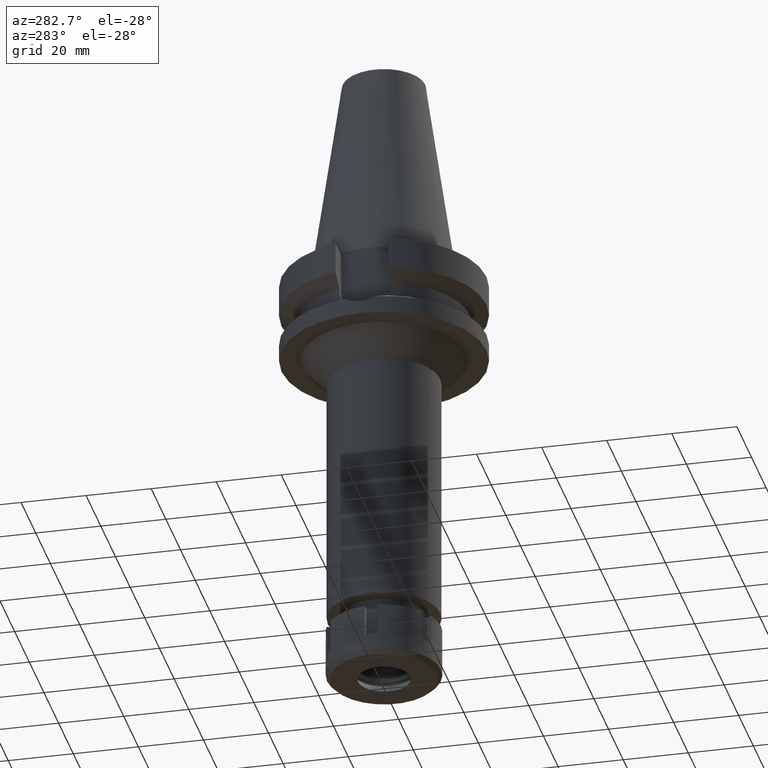
[diagram: clean part render]
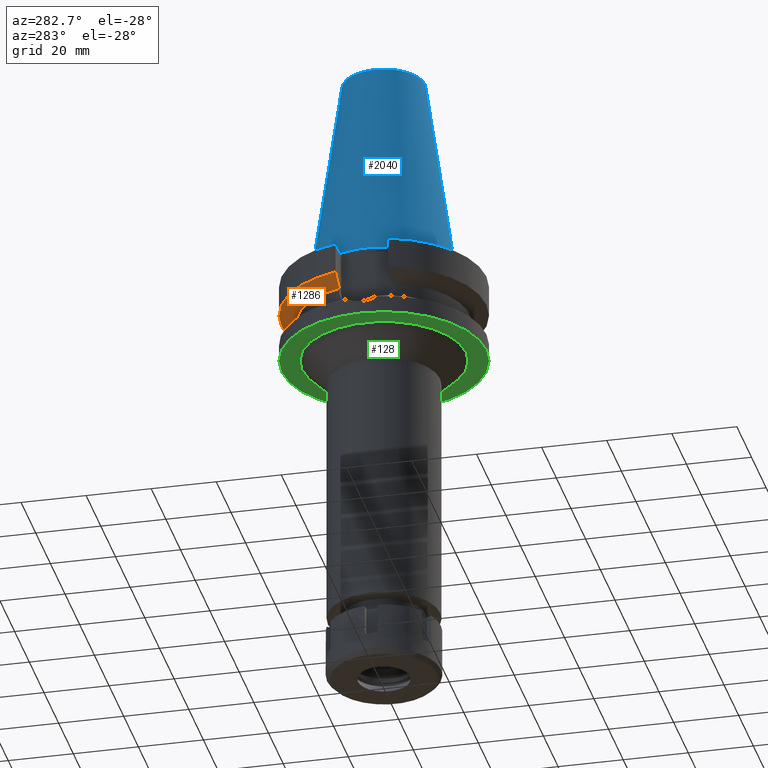
[diagram: same view with three faces highlighted in distinct colors, each labeled with its STEP entity id]
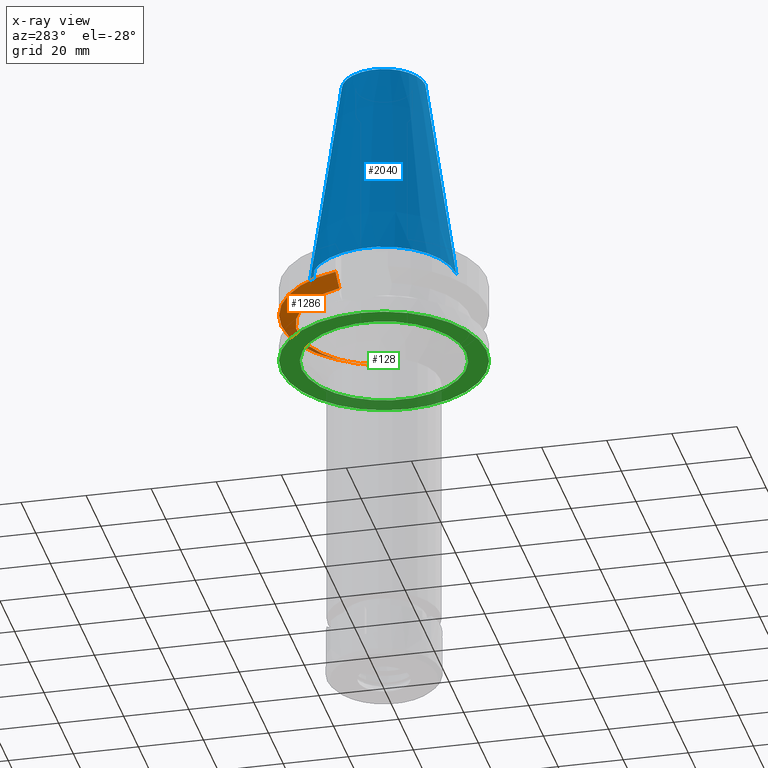
[diagram: x-ray of the same camera — body ghosted, the three highlighted faces saturated]
A machine part, auxiliary view with three faces highlighted in distinct colors.
The next image is the same camera in x-ray (body ghosted, the three faces saturated) — at least one of them is partly hidden behind the body in this view.
Their STEP definitions:

[orange] entity #1286 — the highlighted conical surface has half-angle 60 deg.
#19 = DIRECTION ( 'NONE',  ( 0.0000000000000000000, 0.0000000000000000000, 1.000000000000000000 ) ) ;
#69 = VERTEX_POINT ( 'NONE', #619 ) ;
#82 = EDGE_CURVE ( 'NONE', #2698, #1268, #2562, .T. ) ;
#165 = CONICAL_SURFACE ( 'NONE', #648, 29.00000000000000000, 1.047197551196400456 ) ;
#195 = DIRECTION ( 'NONE',  ( 0.0000000000000000000, 0.0000000000000000000, 1.000000000000000000 ) ) ;
#367 = B_SPLINE_CURVE_WITH_KNOTS ( 'NONE', 3,
 ( #3197, #419, #2354, #1613 ),
 .UNSPECIFIED., .F., .F.,
 ( 4, 4 ),
 ( 0.0000000000000000000, 1.000000000000000000 ),
 .UNSPECIFIED. ) ;
#382 = VERTEX_POINT ( 'NONE', #1389 ) ;
#419 = CARTESIAN_POINT ( 'NONE',  ( -26.83758148156504220, 8.050003176076605982, -13.57772735320767232 ) ) ;
#483 = CARTESIAN_POINT ( 'NONE',  ( -30.45402162749999775, 8.050004143599000628, -11.56546832888999887 ) ) ;
#537 = FACE_OUTER_BOUND ( 'NONE', #3299, .T. ) ;
#619 = CARTESIAN_POINT ( 'NONE',  ( 25.24772413108999913, 8.049995416158999717, -14.45229202514000022 ) ) ;
#648 = AXIS2_PLACEMENT_3D ( 'NONE', #1879, #195, #1647 ) ;
#751 = CARTESIAN_POINT ( 'NONE',  ( 25.24772413108999913, 8.049995416158999717, -14.45229202514000022 ) ) ;
#753 = ORIENTED_EDGE ( 'NONE', *, *, #2375, .T. ) ;
#841 = ORIENTED_EDGE ( 'NONE', *, *, #82, .F. ) ;
#1073 = ORIENTED_EDGE ( 'NONE', *, *, #1351, .F. ) ;
#1268 = VERTEX_POINT ( 'NONE', #483 ) ;
#1286 = ADVANCED_FACE ( 'NONE', ( #537 ), #165, .T. ) ;
#1344 = DIRECTION ( 'NONE',  ( 0.0000000000000000000, 0.0000000000000000000, -1.000000000000000000 ) ) ;
#1351 = EDGE_CURVE ( 'NONE', #382, #69, #1696, .T. ) ;
#1389 = CARTESIAN_POINT ( 'NONE',  ( -25.24772216380000245, 8.050001586324000868, -14.45224487770000010 ) ) ;
#1613 = CARTESIAN_POINT ( 'NONE',  ( -30.45402162749999775, 8.050004143599000628, -11.56546832888999887 ) ) ;
#1647 = DIRECTION ( 'NONE',  ( 0.0000000000000000000, 1.000000000000000000, 0.0000000000000000000 ) ) ;
#1696 = CIRCLE ( 'NONE', #2623, 26.50000000000000711 ) ;
#1879 = CARTESIAN_POINT ( 'NONE',  ( 0.0000000000000000000, 1.065333950388000029E-14, -13.00888132564000088 ) ) ;
#2130 = CARTESIAN_POINT ( 'NONE',  ( 30.45402291367999936, 8.049999277834000821, -11.56551215707000146 ) ) ;
#2354 = CARTESIAN_POINT ( 'NONE',  ( -28.57295871229119655, 8.050008282161501327, -12.61547480431971913 ) ) ;
#2357 = CARTESIAN_POINT ( 'NONE',  ( 28.57292329698156053, 8.049998556609327949, -12.61549605170334765 ) ) ;
#2375 = EDGE_CURVE ( 'NONE', #2698, #69, #2852, .T. ) ;
#2562 = CIRCLE ( 'NONE', #3331, 31.50000000000000000 ) ;
#2623 = AXIS2_PLACEMENT_3D ( 'NONE', #2737, #1344, #3576 ) ;
#2698 = VERTEX_POINT ( 'NONE', #2957 ) ;
#2737 = CARTESIAN_POINT ( 'NONE',  ( 0.0000000000000000000, 1.065333950388000029E-14, -14.45225699861000024 ) ) ;
#2852 = B_SPLINE_CURVE_WITH_KNOTS ( 'NONE', 3,
 ( #2130, #2357, #3490, #751 ),
 .UNSPECIFIED., .F., .F.,
 ( 4, 4 ),
 ( 0.0000000000000000000, 1.000000000000000000 ),
 .UNSPECIFIED. ) ;
#2866 = EDGE_CURVE ( 'NONE', #382, #1268, #367, .T. ) ;
#2957 = CARTESIAN_POINT ( 'NONE',  ( 30.45402291367999936, 8.049999277834000821, -11.56551215707000146 ) ) ;
#3146 = DIRECTION ( 'NONE',  ( 0.0000000000000000000, 1.000000000000000000, 0.0000000000000000000 ) ) ;
#3197 = CARTESIAN_POINT ( 'NONE',  ( -25.24772216380000245, 8.050001586324000868, -14.45224487770000010 ) ) ;
#3299 = EDGE_LOOP ( 'NONE', ( #841, #753, #1073, #3608 ) ) ;
#3331 = AXIS2_PLACEMENT_3D ( 'NONE', #3384, #19, #3146 ) ;
#3384 = CARTESIAN_POINT ( 'NONE',  ( 0.0000000000000000000, 1.065333950388000029E-14, -11.56550565266999975 ) ) ;
#3490 = CARTESIAN_POINT ( 'NONE',  ( 26.83754616686475813, 8.049990822164067694, -13.57774887719724433 ) ) ;
#3576 = DIRECTION ( 'NONE',  ( -0.9527442516822307583, 0.3037735849057093818, 0.0000000000000000000 ) ) ;
#3608 = ORIENTED_EDGE ( 'NONE', *, *, #2866, .T. ) ;

[blue] entity #2040 — the highlighted conical surface has half-angle 8.297 deg.
#141 = ORIENTED_EDGE ( 'NONE', *, *, #1158, .T. ) ;
#239 = DIRECTION ( 'NONE',  ( 0.0000000000000000000, 0.0000000000000000000, -1.000000000000000000 ) ) ;
#337 = EDGE_CURVE ( 'NONE', #1956, #1394, #2066, .T. ) ;
#468 = AXIS2_PLACEMENT_3D ( 'NONE', #818, #239, #3244 ) ;
#508 = DIRECTION ( 'NONE',  ( 0.0000000000000000000, -1.000000000000000000, 0.0000000000000000000 ) ) ;
#680 = LINE ( 'NONE', #2348, #3516 ) ;
#813 = CARTESIAN_POINT ( 'NONE',  ( 0.0000000000000000000, 1.625106302469000024E-14, 32.70000000000000284 ) ) ;
#818 = CARTESIAN_POINT ( 'NONE',  ( 0.0000000000000000000, 1.625106302469000024E-14, 65.40000000000000568 ) ) ;
#1019 = ORIENTED_EDGE ( 'NONE', *, *, #1622, .T. ) ;
#1093 = CARTESIAN_POINT ( 'NONE',  ( 0.0000000000000000000, 1.625106302469000024E-14, 2.842170943039999687E-14 ) ) ;
#1158 = EDGE_CURVE ( 'NONE', #1956, #2119, #1519, .T. ) ;
#1175 = EDGE_CURVE ( 'NONE', #1394, #2894, #2506, .T. ) ;
#1313 = DIRECTION ( 'NONE',  ( 0.0000000000000000000, 0.0000000000000000000, -1.000000000000000000 ) ) ;
#1380 = DIRECTION ( 'NONE',  ( 0.0000000000000000000, 0.0000000000000000000, -1.000000000000000000 ) ) ;
#1388 = EDGE_LOOP ( 'NONE', ( #1963, #3097, #141, #1019 ) ) ;
#1394 = VERTEX_POINT ( 'NONE', #3637 ) ;
#1396 = CARTESIAN_POINT ( 'NONE',  ( 0.0000000000000000000, -12.68766899429999917, 65.40000000000000568 ) ) ;
#1422 = CONICAL_SURFACE ( 'NONE', #2058, 17.45633449714999941, 0.1448099680379422438 ) ;
#1519 = CIRCLE ( 'NONE', #468, 12.68766899429999917 ) ;
#1622 = EDGE_CURVE ( 'NONE', #2119, #2894, #680, .T. ) ;
#1956 = VERTEX_POINT ( 'NONE', #1396 ) ;
#1963 = ORIENTED_EDGE ( 'NONE', *, *, #1175, .F. ) ;
#2040 = ADVANCED_FACE ( 'NONE', ( #2432 ), #1422, .T. ) ;
#2058 = AXIS2_PLACEMENT_3D ( 'NONE', #813, #1380, #508 ) ;
#2066 = LINE ( 'NONE', #3072, #2379 ) ;
#2105 = DIRECTION ( 'NONE',  ( 0.0000000000000000000, 0.1443043893539925626, -0.9895333461855498891 ) ) ;
#2119 = VERTEX_POINT ( 'NONE', #3148 ) ;
#2125 = DIRECTION ( 'NONE',  ( 0.0000000000000000000, -1.000000000000000000, 0.0000000000000000000 ) ) ;
#2348 = CARTESIAN_POINT ( 'NONE',  ( 0.0000000000000000000, 12.68766899429999917, 65.40000000000000568 ) ) ;
#2379 = VECTOR ( 'NONE', #3547, 1000.000000000000114 ) ;
#2432 = FACE_OUTER_BOUND ( 'NONE', #1388, .T. ) ;
#2465 = CARTESIAN_POINT ( 'NONE',  ( 0.0000000000000000000, 22.22500000000000142, 9.947598300640998705E-14 ) ) ;
#2506 = CIRCLE ( 'NONE', #2867, 22.22500000000000142 ) ;
#2867 = AXIS2_PLACEMENT_3D ( 'NONE', #1093, #1313, #2125 ) ;
#2894 = VERTEX_POINT ( 'NONE', #2465 ) ;
#3072 = CARTESIAN_POINT ( 'NONE',  ( 0.0000000000000000000, -12.68766899429999917, 65.40000000000000568 ) ) ;
#3097 = ORIENTED_EDGE ( 'NONE', *, *, #337, .F. ) ;
#3148 = CARTESIAN_POINT ( 'NONE',  ( 0.0000000000000000000, 12.68766899429999917, 65.40000000000000568 ) ) ;
#3244 = DIRECTION ( 'NONE',  ( 0.0000000000000000000, -1.000000000000000000, 0.0000000000000000000 ) ) ;
#3516 = VECTOR ( 'NONE', #2105, 1000.000000000000114 ) ;
#3547 = DIRECTION ( 'NONE',  ( 0.0000000000000000000, -0.1443043893539925626, -0.9895333461855498891 ) ) ;
#3637 = CARTESIAN_POINT ( 'NONE',  ( 0.0000000000000000000, -22.22500000000000142, 2.842170943039999687E-14 ) ) ;

[green] entity #128 — the highlighted planar face has unit normal (0, 0, -1).
#89 = DIRECTION ( 'NONE',  ( 0.0000000000000000000, -1.000000000000000000, 0.0000000000000000000 ) ) ;
#125 = CARTESIAN_POINT ( 'NONE',  ( 0.0000000000000000000, -31.50000000000000000, -27.00000000000000000 ) ) ;
#128 = ADVANCED_FACE ( 'NONE', ( #2568, #585 ), #2889, .T. ) ;
#166 = CARTESIAN_POINT ( 'NONE',  ( 0.0000000000000000000, 31.50000000000000000, -27.00000000000000000 ) ) ;
#227 = ORIENTED_EDGE ( 'NONE', *, *, #3340, .F. ) ;
#273 = VERTEX_POINT ( 'NONE', #166 ) ;
#379 = ORIENTED_EDGE ( 'NONE', *, *, #705, .F. ) ;
#487 = DIRECTION ( 'NONE',  ( 0.0000000000000000000, 0.0000000000000000000, 1.000000000000000000 ) ) ;
#521 = DIRECTION ( 'NONE',  ( 0.0000000000000000000, -1.000000000000000000, 0.0000000000000000000 ) ) ;
#585 = FACE_BOUND ( 'NONE', #1220, .T. ) ;
#637 = DIRECTION ( 'NONE',  ( 0.0000000000000000000, -1.000000000000000000, 0.0000000000000000000 ) ) ;
#705 = EDGE_CURVE ( 'NONE', #1415, #1198, #2326, .T. ) ;
#888 = CARTESIAN_POINT ( 'NONE',  ( 0.0000000000000000000, 0.0000000000000000000, -27.00000000000000000 ) ) ;
#1198 = VERTEX_POINT ( 'NONE', #1363 ) ;
#1220 = EDGE_LOOP ( 'NONE', ( #1516, #379 ) ) ;
#1226 = CIRCLE ( 'NONE', #1790, 31.50000000000000000 ) ;
#1311 = DIRECTION ( 'NONE',  ( 0.0000000000000000000, 1.000000000000000000, 0.0000000000000000000 ) ) ;
#1363 = CARTESIAN_POINT ( 'NONE',  ( 0.0000000000000000000, 25.25000000000000000, -27.00000000000000000 ) ) ;
#1415 = VERTEX_POINT ( 'NONE', #1665 ) ;
#1516 = ORIENTED_EDGE ( 'NONE', *, *, #2269, .F. ) ;
#1526 = DIRECTION ( 'NONE',  ( 0.0000000000000000000, 0.0000000000000000000, -1.000000000000000000 ) ) ;
#1570 = AXIS2_PLACEMENT_3D ( 'NONE', #888, #1994, #637 ) ;
#1665 = CARTESIAN_POINT ( 'NONE',  ( 0.0000000000000000000, -25.25000000000000000, -27.00000000000000000 ) ) ;
#1679 = ORIENTED_EDGE ( 'NONE', *, *, #2998, .F. ) ;
#1685 = AXIS2_PLACEMENT_3D ( 'NONE', #2991, #487, #521 ) ;
#1790 = AXIS2_PLACEMENT_3D ( 'NONE', #3554, #1877, #1311 ) ;
#1845 = CARTESIAN_POINT ( 'NONE',  ( 0.0000000000000000000, 0.0000000000000000000, -27.00000000000000000 ) ) ;
#1877 = DIRECTION ( 'NONE',  ( 0.0000000000000000000, 0.0000000000000000000, 1.000000000000000000 ) ) ;
#1994 = DIRECTION ( 'NONE',  ( 0.0000000000000000000, 0.0000000000000000000, -1.000000000000000000 ) ) ;
#2269 = EDGE_CURVE ( 'NONE', #1198, #1415, #3408, .T. ) ;
#2283 = CIRCLE ( 'NONE', #1685, 31.50000000000000000 ) ;
#2326 = CIRCLE ( 'NONE', #2979, 25.25000000000000000 ) ;
#2456 = EDGE_LOOP ( 'NONE', ( #227, #1679 ) ) ;
#2568 = FACE_OUTER_BOUND ( 'NONE', #2456, .T. ) ;
#2621 = DIRECTION ( 'NONE',  ( 0.0000000000000000000, 1.000000000000000000, 0.0000000000000000000 ) ) ;
#2675 = CARTESIAN_POINT ( 'NONE',  ( 0.0000000000000000000, 0.0000000000000000000, -27.00000000000000000 ) ) ;
#2889 = PLANE ( 'NONE',  #1570 ) ;
#2979 = AXIS2_PLACEMENT_3D ( 'NONE', #1845, #1526, #89 ) ;
#2991 = CARTESIAN_POINT ( 'NONE',  ( 0.0000000000000000000, 2.143376827867999896E-14, -27.00000000000000000 ) ) ;
#2998 = EDGE_CURVE ( 'NONE', #3274, #273, #2283, .T. ) ;
#3186 = DIRECTION ( 'NONE',  ( 0.0000000000000000000, 0.0000000000000000000, -1.000000000000000000 ) ) ;
#3233 = AXIS2_PLACEMENT_3D ( 'NONE', #2675, #3186, #2621 ) ;
#3274 = VERTEX_POINT ( 'NONE', #125 ) ;
#3340 = EDGE_CURVE ( 'NONE', #273, #3274, #1226, .T. ) ;
#3408 = CIRCLE ( 'NONE', #3233, 25.25000000000000000 ) ;
#3554 = CARTESIAN_POINT ( 'NONE',  ( 0.0000000000000000000, 2.143376827867999896E-14, -27.00000000000000000 ) ) ;